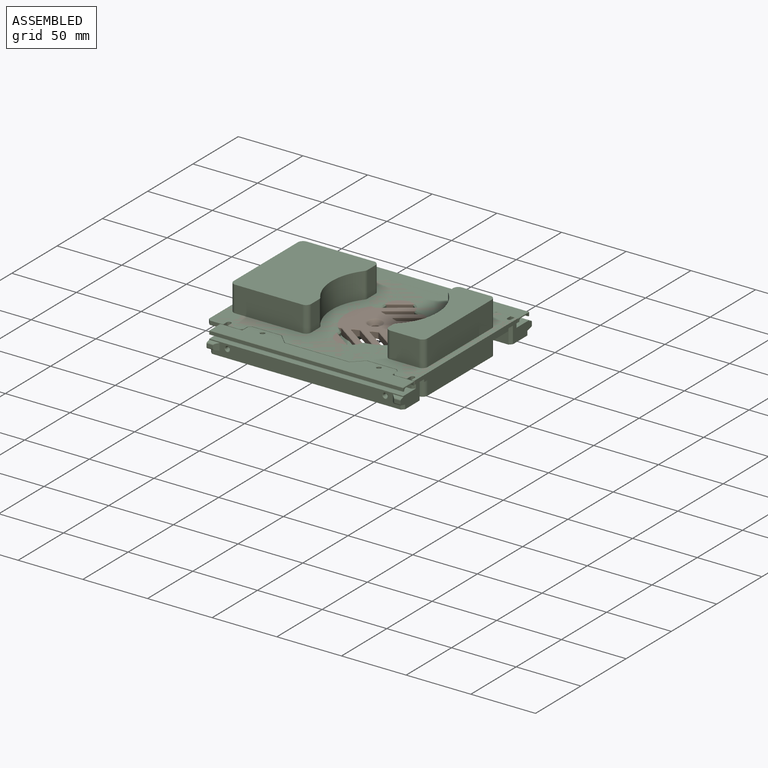
[diagram: assembled view]
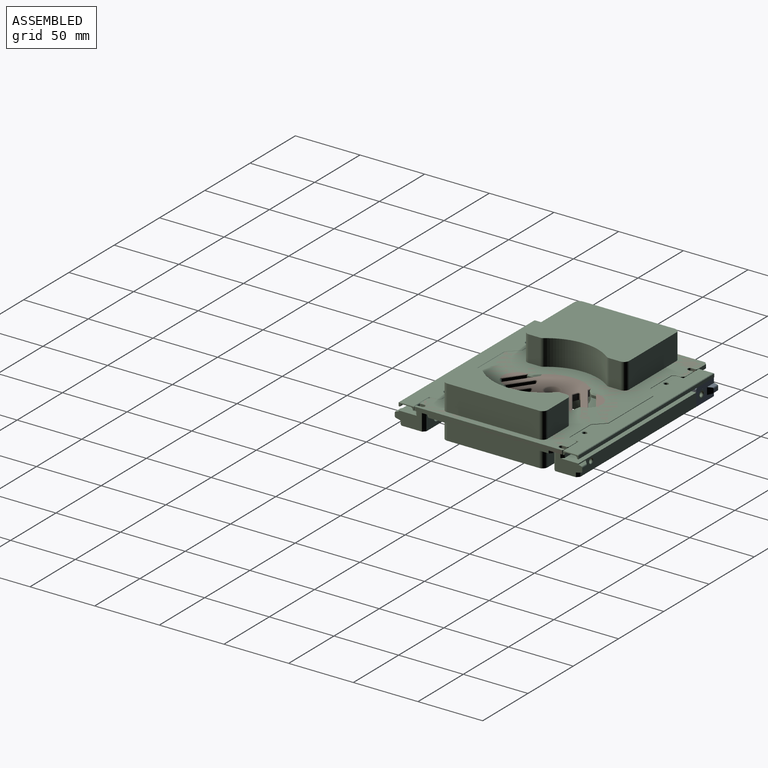
[diagram: assembled view, second angle]
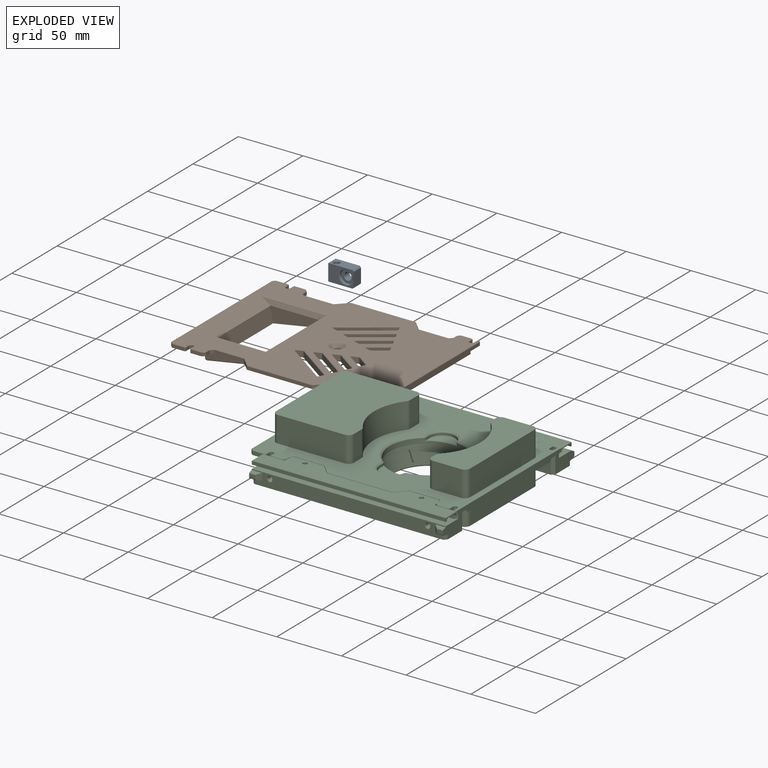
[diagram: exploded view]
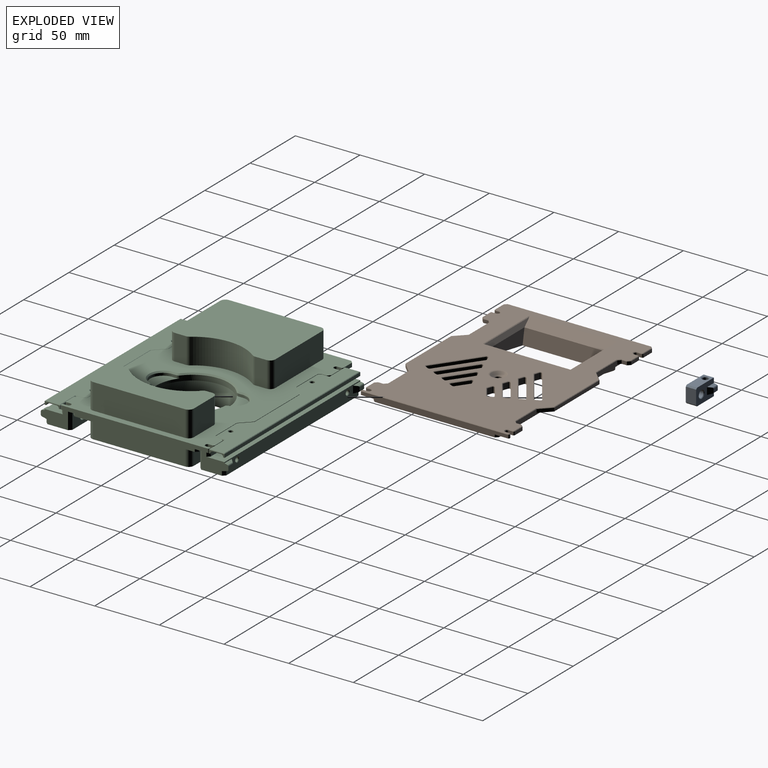
[diagram: exploded view, second angle]
FCSTD DOCUMENT  (FreeCAD 1.2R20260204 (Git shallow))
Label: clip-panneau
License: All rights reserved
LicenseURL: https://en.wikipedia.org/wiki/All_rights_reserved
objects: Sketcher::SketchObject×27, PartDesign::Chamfer×25, PartDesign::Pocket×16, PartDesign::Pad×13, App::Point×9, PartDesign::Fillet×8, PartDesign::Body×7, PartDesign::ShapeBinder×4, PartDesign::Mirrored×3, Part::DatumPlane×3, PartDesign::Draft×2, App::Part×2, PartDesign::FeatureBase×2, App::Link×1
note: 267 computed .brp shape members not serialized (recipe doc carries the construction recipe); baked Part::Feature solids carry a one-line shape summary decoded from their .brp

FEATURE [App::Point] Origin003  label="Origine003"
  Role = Origin
FEATURE [Sketcher::SketchObject] Sketch005
  ArcFitTolerance = 1e-06
  AttachmentSupport = -> [Origin002]
  ExternalTypes = [0]
  FullyConstrained = true
  MakeInternals = false
  MapMode = 5
  Placement = pos=(0,0,0) rot=(1,0,0;1.5708rad)
  sketch-geometry (6):
    g0: LineSegment StartX=0 StartY=-3.5 StartZ=0 EndX=-20 EndY=-3.5 EndZ=0
    g1: LineSegment StartX=-20 StartY=-3.5 StartZ=0 EndX=-20 EndY=-16.5 EndZ=0
    g2: LineSegment StartX=-20 StartY=-16.5 StartZ=0 EndX=0 EndY=-16.5 EndZ=0
    g3: LineSegment StartX=0 StartY=-16.5 StartZ=0 EndX=0 EndY=-3.5 EndZ=0
    g4: Circle CenterX=-6 CenterY=-10 CenterZ=0 NormalX=0 NormalY=0 NormalZ=1 AngleXU=0 Radius=1.7
    g5: Circle [constr] CenterX=-6 CenterY=-10 CenterZ=0 NormalX=0 NormalY=0 NormalZ=1 AngleXU=0 Radius=5
  constraints (17):
    c: Coincident(g0,g1)
    c: Coincident(g1,g2)
    c: Coincident(g2,g3)
    c: Coincident(g3,g0)
    c: Horizontal(g0)
    c: Horizontal(g2)
    c: Vertical(g1)
    c: Vertical(g3)
    c: PointOnObject(g0,g-2)
    c: Distance(g2,g-1) = 16.5
    c: Distance(g0,g-1) = 3.5
    c: Diameter(g4) = 3.4
    c: DistanceY(g4,g-1) = 10
    c: DistanceX(g4,g-1) = 6
    c: Coincident(g5,g4)
    c: Diameter(g5) = 10
    c: DistanceX(g0,g0) = 20
FEATURE [PartDesign::Pad] Pad002
  Direction = (0,-1,2e-16)
  Length = 20
  Length2 = 10
  Profile = -> Sketch005
  ReferenceAxis = -> Sketch005 [N_Axis]
  Refine = true
  SideType = 0
  Suppressed = false
  Type = 0
  Type2 = 0
FEATURE [Sketcher::SketchObject] Sketch006
  ArcFitTolerance = 1e-06
  AttachmentSupport = -> [Pad002]
  ExternalGeometry = -> [Pad002]
  ExternalTypes = [0]
  FullyConstrained = true
  MakeInternals = false
  MapMode = 5
  Placement = pos=(0,-20,0) rot=(1,0,0;1.5708rad)
  sketch-geometry (1):
    g0: Circle CenterX=-6 CenterY=-10 CenterZ=0 NormalX=0 NormalY=0 NormalZ=1 AngleXU=0 Radius=3.5
  constraints (2):
    c: Coincident(g0,g-3)
    c: Diameter(g0) = 7
FEATURE [PartDesign::Pocket] Pocket003
  BaseFeature = -> Pad002
  Direction = (0,1,-2e-16)
  Length = 2
  Length2 = 5
  Profile = -> Sketch006
  ReferenceAxis = -> Sketch006 [N_Axis]
  Refine = true
  SideType = 0
  Suppressed = false
  Type = 0
  Type2 = 0
FEATURE [Sketcher::SketchObject] Sketch007
  ArcFitTolerance = 1e-06
  AttachmentSupport = -> [Pocket003]
  ExternalGeometry = -> [Pocket003]
  ExternalTypes = [0,0]
  FullyConstrained = true
  MakeInternals = false
  MapMode = 5
  Placement = pos=(0,-8e-16,-3.5) rot=(0,0,1;0rad)
  sketch-geometry (2):
    g0: Circle CenterX=-16 CenterY=-16 CenterZ=0 NormalX=0 NormalY=0 NormalZ=1 AngleXU=0 Radius=2.25
    g1: LineSegment [constr] StartX=-20 StartY=-16 StartZ=0 EndX=-16 EndY=-16 EndZ=0
  constraints (6):
    c: Diameter(g0) = 4.5
    c: Coincident(g1,g0)
    c: Horizontal(g1)
    c: DistanceX(g1,g1) = 4
    c: DistanceY(g-4,g1) = 4
    c: PointOnObject(g1,g-3)
FEATURE [PartDesign::Pocket] Pocket004
  BaseFeature = -> Pocket003
  Direction = (0,0,-1)
  Length = 14
  Length2 = 5
  Profile = -> Sketch007
  ReferenceAxis = -> Sketch007 [N_Axis]
  Refine = true
  SideType = 0
  Suppressed = false
  Type = 0
  Type2 = 0
FEATURE [Sketcher::SketchObject] Sketch008
  ArcFitTolerance = 1e-06
  AttachmentSupport = -> [Pocket004]
  ExternalGeometry = -> [Pocket004]
  ExternalTypes = [0]
  FullyConstrained = true
  MakeInternals = false
  MapMode = 5
  Placement = pos=(-20,0,0) rot=(0.57735,-0.57735,-0.57735;2.0944rad)
  sketch-geometry (5):
    g0: LineSegment StartX=2.8e-15 StartY=-12.75 StartZ=0 EndX=-3 EndY=-12 EndZ=0
    g1: LineSegment StartX=-3 StartY=-12 StartZ=0 EndX=-3 EndY=-8 EndZ=0
    g2: LineSegment StartX=-3 StartY=-8 StartZ=0 EndX=1.8e-15 EndY=-7.25 EndZ=0
    g3: LineSegment StartX=1.8e-15 StartY=-7.25 StartZ=0 EndX=2.8e-15 EndY=-12.75 EndZ=0
    g4: LineSegment [constr] StartX=-3 StartY=-10 StartZ=0 EndX=2.2e-15 EndY=-10 EndZ=0
  constraints (14):
    c: Coincident(g0,g1)
    c: Vertical(g1)
    c: Coincident(g1,g2)
    c: PointOnObject(g2,g-3)
    c: Coincident(g2,g3)
    c: Coincident(g3,g0)
    c: PointOnObject(g0,g-3)
    c: Equal(g0,g2)
    c: Symmetric(g1,g1,g4)
    c: Symmetric(g3,g3,g4)
    c: Distance(g-1,g4) = 10
    c: DistanceY(g3,g3) = 5.5
    c: DistanceY(g1,g1) = 4
    c: DistanceX(g4,g4) = 3
FEATURE [PartDesign::Pad] Pad003
  BaseFeature = -> Pocket004
  Direction = (-1,0,0)
  Length = 5
  Length2 = 10
  Profile = -> Sketch008
  ReferenceAxis = -> Sketch008 [N_Axis]
  Refine = true
  Reversed = true
  SideType = 0
  Suppressed = false
  Type = 0
  Type2 = 0
FEATURE [PartDesign::Draft] Draft001
  Angle = -45
  Base = -> Pad003 [Face8]
  BaseFeature = -> Pad003
  NeutralPlane = -> Pad003 [Face12]
  Refine = true
  SupportTransform = false
  Suppressed = false
FEATURE [PartDesign::Fillet] Fillet001
  Base = -> Draft001 [Edge27,Edge22]
  BaseFeature = -> Draft001
  Radius = 1
  Refine = true
  SupportTransform = false
  Suppressed = false
  UseAllEdges = false
FEATURE [PartDesign::Chamfer] Chamfer005
  Angle = 45
  Base = -> Fillet001 [Edge28,Edge34]
  BaseFeature = -> Fillet001
  ChamferType = 0
  FlipDirection = false
  Refine = true
  Size = 0.6
  Size2 = 1
  SupportTransform = false
  Suppressed = false
  UseAllEdges = false
FEATURE [PartDesign::Chamfer] Chamfer006
  Angle = 45
  Base = -> Chamfer005 [Edge38,Edge17,Edge20]
  BaseFeature = -> Chamfer005
  ChamferType = 0
  FlipDirection = false
  Refine = true
  Size = 0.4
  Size2 = 1
  SupportTransform = false
  Suppressed = false
  UseAllEdges = false
FEATURE [PartDesign::Pad] Pad004
  BaseFeature = -> Chamfer006
  Direction = (1,0,0)
  Length = 55
  Length2 = 10
  Profile = -> Chamfer006 [Face9]
  Refine = true
  SideType = 0
  Suppressed = false
  Type = 0
  Type2 = 0
FEATURE [PartDesign::Mirrored] Mirrored
  BaseFeature = -> Pad004
  MirrorPlane = -> Pad004 [Face1]
  Refine = true
  Suppressed = false
  TransformMode = 1
FEATURE [Sketcher::SketchObject] Sketch009
  ArcFitTolerance = 1e-06
  AttachmentSupport = -> [Mirrored]
  ExternalGeometry = -> [Mirrored]
  ExternalTypes = [0]
  FullyConstrained = true
  MakeInternals = false
  MapMode = 5
  Placement = pos=(-20,0,0) rot=(0.57735,-0.57735,-0.57735;2.0944rad)
  sketch-geometry (4):
    g0: LineSegment StartX=0 StartY=-3.5 StartZ=0 EndX=0 EndY=-6.5 EndZ=0
    g1: LineSegment StartX=0 StartY=-6.5 StartZ=0 EndX=12 EndY=-6.5 EndZ=0
    g2: LineSegment StartX=12 StartY=-6.5 StartZ=0 EndX=12 EndY=-3.5 EndZ=0
    g3: LineSegment StartX=12 StartY=-3.5 StartZ=0 EndX=0 EndY=-3.5 EndZ=0
  constraints (11):
    c: Coincident(g0,g1)
    c: Coincident(g1,g2)
    c: Coincident(g2,g3)
    c: Coincident(g3,g0)
    c: Vertical(g0)
    c: Vertical(g2)
    c: Horizontal(g1)
    c: Horizontal(g3)
    c: Coincident(g0,g-3)
    c: Distance(g0,g0) = 3
    c: DistanceX(g3,g3) = 12
FEATURE [PartDesign::Pocket] Pocket005
  BaseFeature = -> Mirrored
  Direction = (1,0,0)
  Length = 5
  Length2 = 5
  Profile = -> Sketch009
  ReferenceAxis = -> Sketch009 [N_Axis]
  Refine = true
  SideType = 0
  Suppressed = false
  Type = 1
  Type2 = 0
FEATURE [PartDesign::Chamfer] Chamfer007
  Angle = 45
  Base = -> Pocket005 [Edge35,Edge6,Edge21,Edge8,Edge29,Edge4]
  BaseFeature = -> Pocket005
  ChamferType = 0
  FlipDirection = false
  Refine = true
  Size = 2
  Size2 = 1
  SupportTransform = false
  Suppressed = false
  UseAllEdges = false
FEATURE [Sketcher::SketchObject] Sketch010
  ArcFitTolerance = 1e-06
  AttachmentSupport = -> [Chamfer007]
  ExternalGeometry = -> [Chamfer007]
  ExternalTypes = [0,0,0]
  FullyConstrained = true
  MakeInternals = false
  MapMode = 5
  Placement = pos=(0,-8e-16,-3.5) rot=(0,0,1;0rad)
  sketch-geometry (4):
    g0: LineSegment [constr] StartX=-16 StartY=-16 StartZ=0 EndX=126 EndY=-16 EndZ=0
    g1: Circle CenterX=10 CenterY=-16 CenterZ=0 NormalX=0 NormalY=0 NormalZ=1 AngleXU=0 Radius=2.25
    g2: Circle CenterX=100 CenterY=-16 CenterZ=0 NormalX=0 NormalY=0 NormalZ=1 AngleXU=0 Radius=2.25
    g3: GeomPoint X=55 Y=-16 Z=0
  constraints (8):
    c: Coincident(g0,g-3)
    c: Coincident(g0,g-4)
    c: PointOnObject(g1,g0)
    c: Symmetric(g0,g0,g3)
    c: Symmetric(g1,g2,g3)
    c: Equal(g1,g2)
    c: Equal(g-5,g1)
    c: DistanceX(g1,g2) = 90
FEATURE [PartDesign::Pocket] Pocket006
  BaseFeature = -> Chamfer007
  Direction = (0,0,-1)
  Length = 5
  Length2 = 5
  Profile = -> Sketch010
  ReferenceAxis = -> Sketch010 [N_Axis]
  Refine = true
  SideType = 0
  Suppressed = false
  Type = 1
  Type2 = 0
FEATURE [PartDesign::Chamfer] Chamfer008
  Angle = 45
  Base = -> Pocket006 [Edge24,Edge23,Edge43,Edge42]
  BaseFeature = -> Pocket006
  ChamferType = 0
  FlipDirection = false
  Refine = true
  Size = 0.6
  Size2 = 1
  SupportTransform = false
  Suppressed = false
  UseAllEdges = false
FEATURE [PartDesign::Body] Body001  label="clip-panneau-led"
  AllowCompound = true
  Group = -> [Sketch005,Pad002,Sketch006,Pocket003,Sketch007,Pocket004,Sketch008,Pad003,Draft001,Fillet001,Chamfer005,Chamfer006,Pad004,Mirrored,Sketch009,Pocket005,Chamfer007,Sketch010,Pocket006,Chamfer008]
  Origin = -> Origin002
  Tip = -> Chamfer008
FEATURE [App::Point] Origin005  label="Origine004"
  Role = Origin
FEATURE [PartDesign::ShapeBinder] CopyChamfer008
  TraceSupport = false
FEATURE [Sketcher::SketchObject] Sketch011
  ArcFitTolerance = 1e-06
  AttachmentSupport = -> [CopyChamfer008]
  ExternalGeometry = -> [CopyChamfer008]
  ExternalTypes = [0,0,0,0,0,0,0]
  FullyConstrained = true
  MakeInternals = false
  MapMode = 5
  Placement = pos=(0,-8e-16,-3.5) rot=(0,0,1;0rad)
  sketch-geometry (17):
    g0: LineSegment [constr] StartX=-20 StartY=0 StartZ=0 EndX=-20 EndY=-20 EndZ=0
    g1: LineSegment [constr] StartX=-20 StartY=-20 StartZ=0 EndX=130 EndY=-20 EndZ=0
    g2: LineSegment [constr] StartX=130 StartY=-20 StartZ=0 EndX=130 EndY=0 EndZ=0
    g3: LineSegment StartX=130 StartY=0 StartZ=0 EndX=-20 EndY=0 EndZ=0
    g4: Circle CenterX=10 CenterY=-16 CenterZ=0 NormalX=0 NormalY=0 NormalZ=1 AngleXU=0 Radius=1.65
    g5: Circle CenterX=100 CenterY=-16 CenterZ=0 NormalX=0 NormalY=0 NormalZ=1 AngleXU=0 Radius=1.65
    g6: LineSegment StartX=-20 StartY=0 StartZ=0 EndX=-20 EndY=-12 EndZ=0
    g7: LineSegment StartX=-20 StartY=-12 StartZ=0 EndX=-3 EndY=-12 EndZ=0
    g8: LineSegment StartX=-3 StartY=-12 StartZ=0 EndX=-3 EndY=-20 EndZ=0
    g9: LineSegment StartX=113 StartY=-20 StartZ=0 EndX=113 EndY=-12 EndZ=0
    g10: LineSegment StartX=113 StartY=-12 StartZ=0 EndX=130 EndY=-12 EndZ=0
    g11: LineSegment StartX=130 StartY=-12 StartZ=0 EndX=130 EndY=0 EndZ=0
    g12: LineSegment StartX=-3 StartY=-20 StartZ=0 EndX=22 EndY=-20 EndZ=0
    g13: LineSegment StartX=22 StartY=-20 StartZ=0 EndX=30 EndY=-12 EndZ=0
    g14: LineSegment StartX=30 StartY=-12 StartZ=0 EndX=80 EndY=-12 EndZ=0
    g15: LineSegment StartX=80 StartY=-12 StartZ=0 EndX=88 EndY=-20 EndZ=0
    g16: LineSegment StartX=88 StartY=-20 StartZ=0 EndX=113 EndY=-20 EndZ=0
  constraints (47):
    c: Coincident(g0,g1)
    c: Coincident(g1,g2)
    c: Coincident(g2,g3)
    c: Coincident(g3,g0)
    c: Vertical(g0)
    c: Vertical(g2)
    c: Horizontal(g1)
    c: Horizontal(g3)
    c: PointOnObject(g0,g-1)
    c: PointOnObject(g-6,g2)
    c: PointOnObject(g-7,g0)
    c: PointOnObject(g-4,g1)
    c: Coincident(g4,g-3)
    c: Coincident(g5,g-5)
    c: Equal(g5,g4)
    c: Diameter(g4) = 3.3
    c: Coincident(g6,g0)
    c: PointOnObject(g6,g0)
    c: Coincident(g7,g6)
    c: Horizontal(g7)
    c: Coincident(g8,g7)
    c: PointOnObject(g8,g1)
    c: PointOnObject(g9,g1)
    c: Vertical(g9)
    c: Coincident(g10,g9)
    c: PointOnObject(g10,g2)
    c: Horizontal(g10)
    c: Coincident(g11,g10)
    c: Coincident(g11,g2)
    c: Equal(g11,g6)
    c: Equal(g10,g7)
    c: PointOnObject(g9,g-8)
    c: Symmetric(g-9,g4,g8)
    c: Coincident(g12,g8)
    c: PointOnObject(g12,g1)
    c: Coincident(g13,g12)
    c: PointOnObject(g13,g-8)
    c: Coincident(g14,g13)
    c: PointOnObject(g14,g-8)
    c: Coincident(g15,g14)
    c: PointOnObject(g15,g1)
    c: Coincident(g16,g15)
    c: Coincident(g16,g9)
    c: Equal(g16,g12)
    c: Equal(g13,g15)
    c: Angle(g15,g14) = 0.785398
    c: DistanceX(g14,g14) = 50
FEATURE [PartDesign::Pad] Pad005
  Direction = (0,0,1)
  Length = 3
  Length2 = 10
  Profile = -> Sketch011
  ReferenceAxis = -> Sketch011 [N_Axis]
  Refine = true
  SideType = 0
  Suppressed = false
  Type = 0
  Type2 = 0
FEATURE [Sketcher::SketchObject] Sketch012
  ArcFitTolerance = 1e-06
  AttachmentSupport = -> [Pad005]
  ExternalGeometry = -> [Pad005]
  ExternalTypes = [0]
  FullyConstrained = true
  MakeInternals = false
  MapMode = 5
  Placement = pos=(-20,0,0) rot=(0.57735,-0.57735,-0.57735;2.0944rad)
  sketch-geometry (5):
    g0: LineSegment StartX=1 StartY=-3.5 StartZ=0 EndX=11 EndY=-3.5 EndZ=0
    g1: LineSegment StartX=11 StartY=-3.5 StartZ=0 EndX=11 EndY=-1.5 EndZ=0
    g2: LineSegment StartX=11 StartY=-1.5 StartZ=0 EndX=1 EndY=-1.5 EndZ=0
    g3: LineSegment StartX=1 StartY=-1.5 StartZ=0 EndX=1 EndY=-3.5 EndZ=0
    g4: GeomPoint X=6 Y=-3.5 Z=0
  constraints (12):
    c: Coincident(g0,g1)
    c: Coincident(g1,g2)
    c: Coincident(g2,g3)
    c: Coincident(g3,g0)
    c: Horizontal(g0)
    c: Horizontal(g2)
    c: Vertical(g1)
    c: Vertical(g3)
    c: DistanceX(g0,g0) = 10
    c: Symmetric(g0,g0,g4)
    c: Symmetric(g-3,g-3,g4)
    c: Distance(g1,g1) = 2
FEATURE [PartDesign::Pocket] Pocket007
  BaseFeature = -> Pad005
  Direction = (1,0,0)
  Length = 5
  Length2 = 5
  Profile = -> Sketch012
  ReferenceAxis = -> Sketch012 [N_Axis]
  Refine = true
  SideType = 0
  Suppressed = false
  Type = 1
  Type2 = 0
FEATURE [PartDesign::Fillet] Fillet002
  Base = -> Pocket007 [Edge44,Edge43]
  BaseFeature = -> Pocket007
  Radius = 1.9
  Refine = true
  SupportTransform = false
  Suppressed = false
  UseAllEdges = false
FEATURE [PartDesign::Chamfer] Chamfer009
  Angle = 45
  Base = -> Fillet002 [Edge57,Edge52]
  BaseFeature = -> Fillet002
  ChamferType = 0
  FlipDirection = false
  Refine = true
  Size = 2
  Size2 = 1
  SupportTransform = false
  Suppressed = false
  UseAllEdges = false
FEATURE [PartDesign::Chamfer] Chamfer010
  Angle = 45
  Base = -> Chamfer009 [Face18,Edge15,Edge16]
  BaseFeature = -> Chamfer009
  ChamferType = 0
  FlipDirection = false
  Refine = true
  Size = 0.4
  Size2 = 1
  SupportTransform = false
  Suppressed = false
  UseAllEdges = false
FEATURE [PartDesign::Body] Body002  label="diffuser"
  AllowCompound = true
  Group = -> [CopyChamfer008,Sketch011,Pad005,Sketch012,Pocket007,Fillet002,Chamfer009,Chamfer010]
  Origin = -> Origin004
  Tip = -> Chamfer010
FEATURE [App::Point] Origin007  label="Origine006"
  Role = Origin
FEATURE [PartDesign::ShapeBinder] CopyChamfer009
  TraceSupport = false
FEATURE [App::Point] Origin009  label="Origine008"
  Role = Origin
FEATURE [App::Part] Part001  label="clip-top-carter-asm"
  Group = -> [Body001,Body002]
  Origin = -> Origin010
FEATURE [App::Point] Origin011  label="Origine010"
  Role = Origin
FEATURE [App::Link] Link  label="clip-top-carter-asm001"
  LinkPlacement = pos=(110,-139,3.038e-13) rot=(0,0,-1;3.14159rad)
  LinkedObject = -> Part001
  Placement = pos=(110,-139,3.038e-13) rot=(0,0,-1;3.14159rad)
FEATURE [App::Point] Origin013  label="Origine012"
  Role = Origin
FEATURE [App::Point] Origin001  label="Origine"
  Role = Origin
FEATURE [Sketcher::SketchObject] Sketch
  ArcFitTolerance = 1e-06
  AttachmentSupport = -> [Origin]
  ExternalTypes = [0]
  FullyConstrained = true
  MakeInternals = false
  MapMode = 5
  Placement = pos=(0,0,0) rot=(1,0,0;1.5708rad)
  sketch-geometry (6):
    g0: LineSegment StartX=0 StartY=-3.5 StartZ=0 EndX=-20 EndY=-3.5 EndZ=0
    g1: LineSegment StartX=-20 StartY=-3.5 StartZ=0 EndX=-20 EndY=-16.5 EndZ=0
    g2: LineSegment StartX=-20 StartY=-16.5 StartZ=0 EndX=0 EndY=-16.5 EndZ=0
    g3: LineSegment StartX=0 StartY=-16.5 StartZ=0 EndX=0 EndY=-3.5 EndZ=0
    g4: Circle CenterX=-6 CenterY=-10 CenterZ=0 NormalX=0 NormalY=0 NormalZ=1 AngleXU=0 Radius=2.7
    g5: Circle [constr] CenterX=-6 CenterY=-10 CenterZ=0 NormalX=0 NormalY=0 NormalZ=1 AngleXU=0 Radius=5
  constraints (17):
    c: Coincident(g0,g1)
    c: Coincident(g1,g2)
    c: Coincident(g2,g3)
    c: Coincident(g3,g0)
    c: Horizontal(g0)
    c: Horizontal(g2)
    c: Vertical(g1)
    c: Vertical(g3)
    c: PointOnObject(g0,g-2)
    c: Distance(g2,g-1) = 16.5
    c: Distance(g0,g-1) = 3.5
    c: Diameter(g4) = 5.4
    c: DistanceY(g4,g-1) = 10
    c: DistanceX(g4,g-1) = 6
    c: Coincident(g5,g4)
    c: Diameter(g5) = 10
    c: DistanceX(g0,g0) = 20
FEATURE [PartDesign::Pad] Pad
  Direction = (0,-1,2e-16)
  Length = 8
  Length2 = 10
  Profile = -> Sketch
  ReferenceAxis = -> Sketch [N_Axis]
  Refine = true
  SideType = 0
  Suppressed = false
  Type = 0
  Type2 = 0
FEATURE [Sketcher::SketchObject] Sketch001
  ArcFitTolerance = 1e-06
  AttachmentSupport = -> [Pad]
  ExternalTypes = [0]
  FullyConstrained = true
  MakeInternals = false
  MapMode = 5
  Placement = pos=(0,-8,0) rot=(1,0,0;1.5708rad)
  sketch-geometry (1):
    g0: Circle CenterX=-6 CenterY=-10 CenterZ=0 NormalX=0 NormalY=0 NormalZ=1 AngleXU=0 Radius=5
  constraints (2):
    c: Coincident(g0,g-3)
    c: Diameter(g0) = 10
FEATURE [PartDesign::Pocket] Pocket
  BaseFeature = -> Pad
  Direction = (0,1,-2e-16)
  Length = 2
  Length2 = 5
  Profile = -> Sketch001
  ReferenceAxis = -> Sketch001 [N_Axis]
  Refine = true
  SideType = 0
  Suppressed = false
  Type = 0
  Type2 = 0
FEATURE [Sketcher::SketchObject] Sketch002
  ArcFitTolerance = 1e-06
  AttachmentSupport = -> [Pocket]
  ExternalGeometry = -> [Pocket]
  ExternalTypes = [0,0]
  FullyConstrained = true
  MakeInternals = false
  MapMode = 5
  Placement = pos=(0,-8e-16,-3.5) rot=(0,0,1;0rad)
  sketch-geometry (2):
    g0: Circle CenterX=-16 CenterY=-4 CenterZ=0 NormalX=0 NormalY=0 NormalZ=1 AngleXU=0 Radius=2.3
    g1: LineSegment [constr] StartX=-20 StartY=-4 StartZ=0 EndX=-16 EndY=-4 EndZ=0
  constraints (5):
    c: Diameter(g0) = 4.6
    c: Symmetric(g-3,g-3,g1)
    c: Coincident(g1,g0)
    c: Horizontal(g1)
    c: DistanceX(g1,g1) = 4
FEATURE [PartDesign::Pocket] Pocket001
  BaseFeature = -> Pocket
  Direction = (0,0,-1)
  Length = 14
  Length2 = 5
  Profile = -> Sketch002
  ReferenceAxis = -> Sketch002 [N_Axis]
  Refine = true
  SideType = 0
  Suppressed = false
  Type = 0
  Type2 = 0
FEATURE [Sketcher::SketchObject] Sketch003
  ArcFitTolerance = 1e-06
  AttachmentSupport = -> [Pocket001]
  ExternalGeometry = -> [Pocket001]
  ExternalTypes = [0]
  FullyConstrained = true
  MakeInternals = false
  MapMode = 5
  Placement = pos=(-20,0,0) rot=(0.57735,-0.57735,-0.57735;2.0944rad)
  sketch-geometry (5):
    g0: LineSegment StartX=2.8e-15 StartY=-12.75 StartZ=0 EndX=-3 EndY=-12 EndZ=0
    g1: LineSegment StartX=-3 StartY=-12 StartZ=0 EndX=-3 EndY=-8 EndZ=0
    g2: LineSegment StartX=-3 StartY=-8 StartZ=0 EndX=1.8e-15 EndY=-7.25 EndZ=0
    g3: LineSegment StartX=1.8e-15 StartY=-7.25 StartZ=0 EndX=2.8e-15 EndY=-12.75 EndZ=0
    g4: LineSegment [constr] StartX=-3 StartY=-10 StartZ=0 EndX=2.2e-15 EndY=-10 EndZ=0
  constraints (14):
    c: Coincident(g0,g1)
    c: Vertical(g1)
    c: Coincident(g1,g2)
    c: PointOnObject(g2,g-3)
    c: Coincident(g2,g3)
    c: Coincident(g3,g0)
    c: PointOnObject(g0,g-3)
    c: Equal(g0,g2)
    c: Symmetric(g1,g1,g4)
    c: Symmetric(g3,g3,g4)
    c: Distance(g-1,g4) = 10
    c: DistanceY(g3,g3) = 5.5
    c: DistanceY(g1,g1) = 4
    c: DistanceX(g4,g4) = 3
FEATURE [PartDesign::Pad] Pad001
  BaseFeature = -> Pocket001
  Direction = (-1,0,0)
  Length = 5
  Length2 = 10
  Profile = -> Sketch003
  ReferenceAxis = -> Sketch003 [N_Axis]
  Refine = true
  Reversed = true
  SideType = 0
  Suppressed = false
  Type = 0
  Type2 = 0
FEATURE [PartDesign::Draft] Draft
  Angle = -45
  Base = -> Pad001 [Face8]
  BaseFeature = -> Pad001
  NeutralPlane = -> Pad001 [Face12]
  Refine = true
  SupportTransform = false
  Suppressed = false
FEATURE [PartDesign::Fillet] Fillet
  Base = -> Draft [Edge27,Edge22]
  BaseFeature = -> Draft
  Radius = 1
  Refine = true
  SupportTransform = false
  Suppressed = false
  UseAllEdges = false
FEATURE [PartDesign::Chamfer] Chamfer
  Angle = 45
  Base = -> Fillet [Edge28,Edge34]
  BaseFeature = -> Fillet
  ChamferType = 0
  FlipDirection = false
  Refine = true
  Size = 0.6
  Size2 = 1
  SupportTransform = false
  Suppressed = false
  UseAllEdges = false
FEATURE [PartDesign::Chamfer] Chamfer001
  Angle = 45
  Base = -> Chamfer [Edge38,Edge17,Edge20]
  BaseFeature = -> Chamfer
  ChamferType = 0
  FlipDirection = false
  Refine = true
  Size = 0.4
  Size2 = 1
  SupportTransform = false
  Suppressed = false
  UseAllEdges = false
FEATURE [PartDesign::Chamfer] Chamfer002
  Angle = 45
  Base = -> Chamfer001 [Edge13,Edge32]
  BaseFeature = -> Chamfer001
  ChamferType = 0
  FlipDirection = false
  Refine = true
  Size = 1
  Size2 = 1
  SupportTransform = false
  Suppressed = false
  UseAllEdges = false
FEATURE [PartDesign::Chamfer] Chamfer003
  Angle = 45
  Base = -> Chamfer002 [Face4]
  BaseFeature = -> Chamfer002
  ChamferType = 0
  FlipDirection = false
  Refine = true
  Size = 0.4
  Size2 = 1
  SupportTransform = false
  Suppressed = false
  UseAllEdges = false
FEATURE [Part::DatumPlane] DatumPlane
  AttachmentOffset = pos=(0,0,0) rot=(1,0,0;1.5708rad)
  AttachmentSupport = -> [Chamfer003]
  MapMode = 45
  Placement = pos=(-9.06941,-4,-10) rot=(0,0,1;0rad)
FEATURE [Sketcher::SketchObject] Sketch004
  ArcFitTolerance = 1e-06
  AttachmentSupport = -> [DatumPlane]
  ExternalGeometry = -> [Chamfer003]
  ExternalTypes = [0]
  FullyConstrained = true
  MakeInternals = false
  MapMode = 5
  Placement = pos=(-9.06941,-4,-10) rot=(0,0,1;0rad)
  sketch-geometry (1):
    g0: Circle CenterX=-6.93059 CenterY=0 CenterZ=0 NormalX=0 NormalY=0 NormalZ=1 AngleXU=0 Radius=2.75
  constraints (2):
    c: Coincident(g0,g-3)
    c: Diameter(g0) = 5.5
FEATURE [PartDesign::Pocket] Pocket002
  BaseFeature = -> Chamfer003
  Direction = (0,0,-1)
  Length = 3
  Length2 = 5
  Profile = -> Sketch004
  ReferenceAxis = -> Sketch004 [N_Axis]
  Refine = true
  SideType = 2
  Suppressed = false
  Type = 0
  Type2 = 0
FEATURE [PartDesign::Chamfer] Chamfer004
  Angle = 45
  Base = -> Pocket002 [Edge70,Edge73]
  BaseFeature = -> Pocket002
  ChamferType = 0
  FlipDirection = false
  Refine = true
  Size = 0.4
  Size2 = 1
  SupportTransform = false
  Suppressed = false
  UseAllEdges = false
FEATURE [PartDesign::Body] Body  label="clip-panneau-3mm"
  AllowCompound = true
  Group = -> [Sketch,Pad,Sketch001,Pocket,Sketch002,Pocket001,Sketch003,Pad001,Draft,Fillet,Chamfer,Chamfer001,Chamfer002,Chamfer003,DatumPlane,Sketch004,Pocket002,Chamfer004]
  Origin = -> Origin
  Tip = -> Chamfer004
FEATURE [PartDesign::ShapeBinder] ShapeBinder
  Support = -> [Body002]
  TraceSupport = false
FEATURE [Sketcher::SketchObject] Sketch013
  ArcFitTolerance = 1e-06
  AttachmentSupport = -> [CopyChamfer009]
  ExternalGeometry = -> [CopyChamfer009,ShapeBinder]
  ExternalTypes = [0,0,0,0,0,0,0,0,0,0,0,0]
  FullyConstrained = true
  MakeInternals = false
  MapMode = 5
  Placement = pos=(0,-8e-16,-3.5) rot=(0,0,1;0rad)
  sketch-geometry (14):
    g0: Circle CenterX=-16 CenterY=-16 CenterZ=0 NormalX=0 NormalY=0 NormalZ=1 AngleXU=0 Radius=1.7
    g1: Circle CenterX=126 CenterY=-16 CenterZ=0 NormalX=0 NormalY=0 NormalZ=1 AngleXU=0 Radius=1.7
    g2: LineSegment StartX=130 StartY=-69.5 StartZ=0 EndX=130 EndY=-12 EndZ=0
    g3: LineSegment StartX=130 StartY=-12 StartZ=0 EndX=113 EndY=-12 EndZ=0
    g4: LineSegment StartX=113 StartY=-12 StartZ=0 EndX=113 EndY=-20 EndZ=0
    g5: LineSegment StartX=113 StartY=-20 StartZ=0 EndX=88 EndY=-20 EndZ=0
    g6: LineSegment StartX=88 StartY=-20 StartZ=0 EndX=80 EndY=-12 EndZ=0
    g7: LineSegment StartX=80 StartY=-12 StartZ=0 EndX=30 EndY=-12 EndZ=0
    g8: LineSegment StartX=30 StartY=-12 StartZ=0 EndX=22 EndY=-20 EndZ=0
    g9: LineSegment StartX=22 StartY=-20 StartZ=0 EndX=-3 EndY=-20 EndZ=0
    g10: LineSegment StartX=-3 StartY=-20 StartZ=0 EndX=-3 EndY=-12 EndZ=0
    g11: LineSegment StartX=-3 StartY=-12 StartZ=0 EndX=-20 EndY=-12 EndZ=0
    g12: LineSegment StartX=-20 StartY=-12 StartZ=0 EndX=-20 EndY=-69.5 EndZ=0
    g13: LineSegment StartX=-20 StartY=-69.5 StartZ=0 EndX=130 EndY=-69.5 EndZ=0
  constraints (33):
    c: Coincident(g0,g-3)
    c: Diameter(g0) = 3.4
    c: Coincident(g1,g-4)
    c: Equal(g1,g0)
    c: Vertical(g2)
    c: Coincident(g3,g2)
    c: Horizontal(g3)
    c: PointOnObject(g-5,g2)
    c: Coincident(g4,g3)
    c: Vertical(g4)
    c: Coincident(g5,g4)
    c: Horizontal(g5)
    c: Coincident(g6,g5)
    c: Coincident(g7,g6)
    c: Coincident(g7,g8)
    c: Coincident(g8,g9)
    c: Horizontal(g9)
    c: Coincident(g9,g10)
    c: Vertical(g10)
    c: Coincident(g10,g11)
    c: Coincident(g11,g12)
    c: Vertical(g12)
    c: Equal(g2,g12)
    c: Coincident(g13,g12)
    c: Coincident(g13,g2)
    c: Distance(g-6,g13) = 49.5
    c: Coincident(g11,g-14)
    c: Coincident(g-14,g10)
    c: Coincident(g7,g-12)
    c: Coincident(g8,g-12)
    c: Coincident(g6,g-11)
    c: Coincident(g5,g-10)
    c: Coincident(g3,g-9)
FEATURE [PartDesign::Pad] Pad006
  Direction = (0,0,1)
  Length = 3
  Length2 = 10
  Profile = -> Sketch013
  ReferenceAxis = -> Sketch013 [N_Axis]
  Refine = true
  SideType = 0
  Suppressed = false
  Type = 0
  Type2 = 0
FEATURE [Sketcher::SketchObject] Sketch014
  ArcFitTolerance = 1e-06
  AttachmentSupport = -> [Pad006]
  ExternalGeometry = -> [Pad006]
  ExternalTypes = [0,0]
  FullyConstrained = true
  MakeInternals = false
  MapMode = 5
  Placement = pos=(0,0,-3.5) rot=(1,0,0;3.14159rad)
  sketch-geometry (4):
    g0: LineSegment StartX=-20 StartY=69.5 StartZ=0 EndX=-20 EndY=21 EndZ=0
    g1: LineSegment StartX=-20 StartY=21 StartZ=0 EndX=130 EndY=21 EndZ=0
    g2: LineSegment StartX=130 StartY=21 StartZ=0 EndX=130 EndY=69.5 EndZ=0
    g3: LineSegment StartX=130 StartY=69.5 StartZ=0 EndX=-20 EndY=69.5 EndZ=0
  constraints (10):
    c: Coincident(g0,g1)
    c: Coincident(g1,g2)
    c: Coincident(g2,g3)
    c: Coincident(g3,g0)
    c: Vertical(g0)
    c: Vertical(g2)
    c: Horizontal(g1)
    c: Coincident(g0,g-3)
    c: Coincident(g2,g-3)
    c: Distance(g1,g-4) = 1
FEATURE [PartDesign::Pad] Pad007
  BaseFeature = -> Pad006
  Direction = (0,0,-1)
  Length = 2
  Length2 = 10
  Profile = -> Sketch014
  ReferenceAxis = -> Sketch014 [N_Axis]
  Refine = true
  SideType = 0
  Suppressed = false
  Type = 0
  Type2 = 0
FEATURE [PartDesign::Chamfer] Chamfer011
  Angle = 45
  Base = -> Pad007 [Edge38,Edge40,Edge31,Edge2,Edge33,Edge32]
  BaseFeature = -> Pad007
  ChamferType = 0
  FlipDirection = false
  Refine = true
  Size = 2
  Size2 = 1
  SupportTransform = false
  Suppressed = false
  UseAllEdges = false
FEATURE [Sketcher::SketchObject] Sketch019
  ArcFitTolerance = 1e-06
  AttachmentSupport = -> [Chamfer011]
  ExternalGeometry = -> [Chamfer011]
  ExternalTypes = [0,0,0,0]
  FullyConstrained = true
  MakeInternals = false
  MapMode = 5
  Placement = pos=(0,0,-0.5) rot=(0,0,1;0rad)
  sketch-geometry (8):
    g0: ArcOfCircle CenterX=126 CenterY=-16 CenterZ=0 NormalX=0 NormalY=0 NormalZ=1 AngleXU=0 Radius=1.7 StartAngle=3.14159 EndAngle=6.28319
    g1: ArcOfCircle CenterX=126 CenterY=-12 CenterZ=0 NormalX=0 NormalY=0 NormalZ=1 AngleXU=0 Radius=1.7 StartAngle=-9e-16 EndAngle=3.14159
    g2: LineSegment StartX=124.3 StartY=-16 StartZ=0 EndX=124.3 EndY=-12 EndZ=0
    g3: LineSegment StartX=127.7 StartY=-16 StartZ=0 EndX=127.7 EndY=-12 EndZ=0
    g4: ArcOfCircle CenterX=-16 CenterY=-16 CenterZ=0 NormalX=0 NormalY=0 NormalZ=1 AngleXU=0 Radius=1.7 StartAngle=3.14159 EndAngle=6.28319
    g5: ArcOfCircle CenterX=-16 CenterY=-12 CenterZ=0 NormalX=0 NormalY=0 NormalZ=1 AngleXU=0 Radius=1.7 StartAngle=0 EndAngle=3.14159
    g6: LineSegment StartX=-17.7 StartY=-16 StartZ=0 EndX=-17.7 EndY=-12 EndZ=0
    g7: LineSegment StartX=-14.3 StartY=-16 StartZ=0 EndX=-14.3 EndY=-12 EndZ=0
  constraints (18):
    c: Tangent(g0,g2) = 1.5708
    c: Tangent(g0,g3) = -1.5708
    c: Tangent(g1,g2) = 1.5708
    c: Tangent(g1,g3) = -1.5708
    c: Equal(g0,g1)
    c: Coincident(g0,g-4)
    c: PointOnObject(g1,g-5)
    c: Tangent(g4,g6) = 1.5708
    c: Tangent(g4,g7) = -1.5708
    c: Tangent(g5,g6) = 1.5708
    c: Tangent(g5,g7) = -1.5708
    c: Equal(g4,g5)
    c: Coincident(g4,g-3)
    c: PointOnObject(g5,g-6)
    c: Vertical(g6)
    c: Equal(g4,g-3)
    c: Vertical(g3)
    c: Equal(g0,g-4)
FEATURE [PartDesign::Pocket] Pocket010
  BaseFeature = -> Chamfer011
  Direction = (0,0,-1)
  Length = 5
  Length2 = 5
  Profile = -> Sketch019
  ReferenceAxis = -> Sketch019 [N_Axis]
  Refine = true
  SideType = 0
  Suppressed = false
  Type = 0
  Type2 = 0
FEATURE [PartDesign::Fillet] Fillet004
  Base = -> Pocket010 [Edge68,Edge65,Edge81,Edge2,Edge4]
  BaseFeature = -> Pocket010
  Radius = 1
  Refine = true
  SupportTransform = false
  Suppressed = false
  UseAllEdges = false
FEATURE [PartDesign::Pad] Pad009
  BaseFeature = -> Fillet004
  Direction = (-1,0,0)
  Length = 10
  Length2 = 10
  Profile = -> Fillet004 [Face8]
  Refine = true
  SideType = 0
  Suppressed = false
  Type = 0
  Type2 = 0
FEATURE [PartDesign::Chamfer] Chamfer015
  Angle = 45
  Base = -> Pad009 [Edge98,Edge93]
  BaseFeature = -> Pad009
  ChamferType = 0
  FlipDirection = false
  Refine = true
  Size = 2
  Size2 = 1
  SupportTransform = false
  Suppressed = false
  UseAllEdges = false
FEATURE [PartDesign::Mirrored] Mirrored001
  BaseFeature = -> Chamfer015
  MirrorPlane = -> Chamfer011 [Face24]
  Refine = true
  Suppressed = false
  TransformMode = 1
FEATURE [PartDesign::Body] Body003  label="carter-top-base"
  AllowCompound = true
  Group = -> [CopyChamfer009,Sketch013,Pad006,Sketch014,Pad007,Chamfer011,Sketch019,Pocket010,Fillet004,Pad009,Chamfer015,Mirrored001,ShapeBinder]
  Origin = -> Origin006
  Tip = -> Mirrored001
FEATURE [PartDesign::FeatureBase] Clone
  BaseFeature = -> Body003
  Suppressed = false
FEATURE [Sketcher::SketchObject] Sketch015
  ArcFitTolerance = 1e-06
  AttachmentSupport = -> [Clone]
  ExternalTypes = [0,0]
  FullyConstrained = true
  MakeInternals = false
  MapMode = 5
  Placement = pos=(0,0,-0.5) rot=(0,0,1;0rad)
  sketch-geometry (5):
    g0: LineSegment [constr] StartX=-20 StartY=-69.5 StartZ=0 EndX=130 EndY=-69.5 EndZ=0
    g1: ArcOfCircle CenterX=68 CenterY=-69.5 CenterZ=0 NormalX=0 NormalY=0 NormalZ=1 AngleXU=0 Radius=28 StartAngle=4.71239 EndAngle=7.85398
    g2: ArcOfCircle CenterX=66 CenterY=-69.5 CenterZ=0 NormalX=0 NormalY=0 NormalZ=1 AngleXU=0 Radius=28 StartAngle=1.5708 EndAngle=4.71239
    g3: LineSegment StartX=68 StartY=-97.5 StartZ=0 EndX=66 EndY=-97.5 EndZ=0
    g4: LineSegment StartX=68 StartY=-41.5 StartZ=0 EndX=66 EndY=-41.5 EndZ=0
  constraints (12):
    c: Symmetric(g-3,g-3,g0)
    c: Symmetric(g-4,g-4,g0)
    c: Tangent(g1,g3) = 1.5708
    c: Tangent(g1,g4) = -1.5708
    c: Tangent(g2,g3) = 1.5708
    c: Tangent(g2,g4) = -1.5708
    c: Equal(g1,g2)
    c: PointOnObject(g1,g0)
    c: Radius(g1) = 28
    c: Distance(g1,g-4) = 62
    c: Distance(g2,g1) = 2
    c: PointOnObject(g2,g0)
FEATURE [PartDesign::Pocket] Pocket008
  BaseFeature = -> Clone
  Direction = (0,0,-1)
  Length = 5
  Length2 = 5
  Profile = -> Sketch015
  ReferenceAxis = -> Sketch015 [N_Axis]
  Refine = true
  SideType = 0
  Suppressed = false
  Type = 0
  Type2 = 0
FEATURE [Sketcher::SketchObject] Sketch016
  ArcFitTolerance = 1e-06
  AttachmentSupport = -> [Pocket008]
  ExternalGeometry = -> [Pocket008]
  ExternalTypes = [0,0,0,0]
  FullyConstrained = true
  MakeInternals = false
  MapMode = 5
  Placement = pos=(0,0,-5.5) rot=(1,0,0;3.14159rad)
  sketch-geometry (4):
    g0: ArcOfCircle CenterX=66 CenterY=69.5 CenterZ=0 NormalX=0 NormalY=0 NormalZ=1 AngleXU=0 Radius=32 StartAngle=1.5708 EndAngle=4.71239
    g1: LineSegment StartX=68 StartY=37.5 StartZ=0 EndX=66 EndY=37.5 EndZ=0
    g2: ArcOfCircle CenterX=68 CenterY=69.5 CenterZ=0 NormalX=0 NormalY=0 NormalZ=1 AngleXU=0 Radius=32 StartAngle=4.71239 EndAngle=7.85398
    g3: LineSegment StartX=68 StartY=101.5 StartZ=0 EndX=66 EndY=101.5 EndZ=0
  constraints (8):
    c: Tangent(g0,g1) = 1.5708
    c: Tangent(g0,g3) = -1.5708
    c: Tangent(g1,g2) = 1.5708
    c: Tangent(g2,g3) = -1.5708
    c: Parallel(g3,g-5)
    c: Coincident(g0,g-3)
    c: Coincident(g2,g-4)
    c: Distance(g2,g-4) = 4
FEATURE [Part::DatumPlane] DatumPlane001
  AttachmentOffset = pos=(0,0,0) rot=(1,0,0;1.5708rad)
  AttachmentSupport = -> [Pocket008]
  MapMode = 45
  Placement = pos=(67,-69.5,-3) rot=(0.57735,0.57735,0.57735;4.18879rad)
FEATURE [Sketcher::SketchObject] Sketch017
  ArcFitTolerance = 1e-06
  AttachmentSupport = -> [DatumPlane001]
  ExternalGeometry = -> [Sketch016]
  ExternalTypes = [0]
  FullyConstrained = false
  MakeInternals = false
  MapMode = 5
  Placement = pos=(67,-69.5,-3) rot=(-0.57735,-0.57735,-0.57735;2.0944rad)
  sketch-geometry (1):
    g0: LineSegment StartX=-2.5 StartY=-5.2794e-12 StartZ=0 EndX=-24.934 EndY=4.36072 EndZ=0
  constraints (2):
    c: Symmetric(g-3,g-3,g0)
    c: Angle(g-2,g0) = 1.37881
FEATURE [PartDesign::Pad] Pad008
  BaseFeature = -> Pocket008
  Direction = (0.190809,1e-16,-0.981627)
  Length = 15
  Length2 = 10
  Profile = -> Sketch016
  ReferenceAxis = -> Sketch017 [Edge1]
  Refine = true
  SideType = 0
  Suppressed = false
  Type = 0
  Type2 = 0
FEATURE [PartDesign::Chamfer] Chamfer012
  Angle = 45
  Base = -> Pad008 [Edge53]
  BaseFeature = -> Pad008
  ChamferType = 0
  FlipDirection = false
  Refine = true
  Size = 4
  Size2 = 1
  SupportTransform = false
  Suppressed = false
  UseAllEdges = false
FEATURE [PartDesign::Chamfer] Chamfer013
  Angle = 45
  Base = -> Chamfer012 [Edge181,Edge62]
  BaseFeature = -> Chamfer012
  ChamferType = 0
  FlipDirection = false
  Refine = true
  Size = 0.8
  Size2 = 1
  SupportTransform = false
  Suppressed = false
  UseAllEdges = false
FEATURE [Sketcher::SketchObject] Sketch018
  ArcFitTolerance = 1e-06
  AttachmentSupport = -> [Chamfer013]
  ExternalGeometry = -> [Chamfer013]
  ExternalTypes = [0,0]
  FullyConstrained = true
  MakeInternals = false
  MapMode = 5
  Placement = pos=(0,0,-0.5) rot=(0,0,1;0rad)
  sketch-geometry (4):
    g0: ArcOfCircle CenterX=59.5 CenterY=-42.2649 CenterZ=0 NormalX=0 NormalY=0 NormalZ=1 AngleXU=0 Radius=10 StartAngle=4e-16 EndAngle=3.14159
    g1: ArcOfCircle CenterX=59.5 CenterY=-96.7351 CenterZ=0 NormalX=0 NormalY=0 NormalZ=1 AngleXU=0 Radius=10 StartAngle=3.14159 EndAngle=6.28319
    g2: LineSegment StartX=69.5 StartY=-42.2649 StartZ=0 EndX=69.5 EndY=-96.7351 EndZ=0
    g3: LineSegment StartX=49.5 StartY=-42.2649 StartZ=0 EndX=49.5 EndY=-96.7351 EndZ=0
  constraints (10):
    c: Tangent(g0,g2) = 1.5708
    c: Tangent(g0,g3) = -1.5708
    c: Tangent(g1,g2) = 1.5708
    c: Tangent(g1,g3) = -1.5708
    c: Equal(g0,g1)
    c: Vertical(g2)
    c: Distance(g0,g0) = 20
    c: PointOnObject(g1,g-4)
    c: PointOnObject(g0,g-4)
    c: DistanceX(g0,g-4) = 6.5
FEATURE [PartDesign::Pocket] Pocket009
  BaseFeature = -> Chamfer013
  Direction = (0,0,-1)
  Length = 3
  Length2 = 5
  Profile = -> Sketch018
  ReferenceAxis = -> Sketch018 [N_Axis]
  Refine = true
  SideType = 0
  Suppressed = false
  Type = 0
  Type2 = 0
FEATURE [PartDesign::Fillet] Fillet003
  Base = -> Pocket009 [Edge223,Edge224,Edge216,Edge217]
  BaseFeature = -> Pocket009
  Radius = 3
  Refine = true
  SupportTransform = false
  Suppressed = false
  UseAllEdges = false
FEATURE [PartDesign::Chamfer] Chamfer014
  Angle = 45
  Base = -> Fillet003 [Edge4]
  BaseFeature = -> Fillet003
  ChamferType = 0
  FlipDirection = false
  Refine = true
  Size = 1
  Size2 = 1
  SupportTransform = false
  Suppressed = false
  UseAllEdges = false
FEATURE [PartDesign::Body] Body004  label="carter-top-battery"
  AllowCompound = true
  Group = -> [Clone,Sketch015,Pocket008,Sketch016,DatumPlane001,Sketch017,Pad008,Chamfer012,Chamfer013,Sketch018,Pocket009,Fillet003,Chamfer014]
  Origin = -> Origin012
  Tip = -> Chamfer014
FEATURE [App::Point] Origin015  label="Origine014"
  Role = Origin
FEATURE [PartDesign::ShapeBinder] CopyChamfer014
  TraceSupport = false
FEATURE [Sketcher::SketchObject] Sketch020
  ArcFitTolerance = 1e-06
  AttachmentSupport = -> [CopyChamfer014]
  ExternalGeometry = -> [CopyChamfer014]
  ExternalTypes = [0,0,0,0,0]
  FullyConstrained = true
  MakeInternals = false
  MapMode = 5
  Placement = pos=(0,0,-0.5) rot=(0,0,1;0rad)
  sketch-geometry (13):
    g0: LineSegment StartX=35 StartY=-94.7784 StartZ=0 EndX=35 EndY=-109 EndZ=0
    g1: LineSegment StartX=35 StartY=-109 StartZ=0 EndX=-25 EndY=-109 EndZ=0
    g2: LineSegment StartX=-25 StartY=-30 StartZ=0 EndX=35 EndY=-30 EndZ=0
    g3: LineSegment StartX=35 StartY=-30 StartZ=0 EndX=35 EndY=-44.2216 EndZ=0
    g4: LineSegment StartX=95 StartY=-30 StartZ=0 EndX=125 EndY=-30 EndZ=0
    g5: LineSegment StartX=125 StartY=-30 StartZ=0 EndX=125 EndY=-109 EndZ=0
    g6: LineSegment StartX=125 StartY=-109 StartZ=0 EndX=95 EndY=-109 EndZ=0
    g7: LineSegment StartX=95 StartY=-109 StartZ=0 EndX=95 EndY=-99.0127 EndZ=0
    g8: LineSegment StartX=95 StartY=-30 StartZ=0 EndX=95 EndY=-39.9873 EndZ=0
    g9: ArcOfCircle CenterX=66 CenterY=-69.5 CenterZ=0 NormalX=0 NormalY=0 NormalZ=1 AngleXU=0 Radius=40 StartAngle=2.45751 EndAngle=3.82567
    g10: ArcOfCircle CenterX=68 CenterY=-69.5 CenterZ=0 NormalX=0 NormalY=0 NormalZ=1 AngleXU=0 Radius=40 StartAngle=5.45335 EndAngle=7.11302
    g11: LineSegment [constr] StartX=-30 StartY=-69.5 StartZ=0 EndX=130 EndY=-69.5 EndZ=0
    g12: LineSegment StartX=-25 StartY=-109 StartZ=0 EndX=-25 EndY=-30 EndZ=0
  constraints (38):
    c: Vertical(g0)
    c: Coincident(g0,g1)
    c: Horizontal(g1)
    c: Horizontal(g2)
    c: Coincident(g2,g3)
    c: Vertical(g3)
    c: Horizontal(g4)
    c: Coincident(g4,g5)
    c: Coincident(g5,g6)
    c: Horizontal(g6)
    c: Coincident(g6,g7)
    c: Vertical(g7)
    c: Coincident(g4,g8)
    c: Vertical(g8)
    c: Coincident(g9,g-3)
    c: Coincident(g9,g3)
    c: Coincident(g9,g0)
    c: Coincident(g10,g-4)
    c: Coincident(g10,g8)
    c: Coincident(g10,g7)
    c: PointOnObject(g0,g6)
    c: PointOnObject(g2,g4)
    c: Symmetric(g-6,g-6,g11)
    c: Symmetric(g-5,g-5,g11)
    c: Symmetric(g5,g4,g11)
    c: Equal(g0,g3)
    c: Equal(g8,g7)
    c: Distance(g4,g-5) = 5
    c: Distance(g-37,g2) = 10
    c: Equal(g9,g10)
    c: Radius(g9) = 40
    c: Distance(g4,g4) = 30
    c: Coincident(g12,g1)
    c: Coincident(g12,g2)
    c: Vertical(g12)
    c: Symmetric(g2,g1,g11)
    c: Distance(g-20,g12) = 5
    c: DistanceX(g2,g2) = 60
FEATURE [PartDesign::Pad] Pad010
  Direction = (0,0,1)
  Length = 40
  Length2 = 10
  Profile = -> Sketch020
  ReferenceAxis = -> Sketch020 [N_Axis]
  Refine = true
  SideType = 2
  Suppressed = false
  Type = 0
  Type2 = 0
FEATURE [PartDesign::Fillet] Fillet005
  Base = -> Pad010 [Edge20,Edge23,Edge11,Edge19,Edge26,Edge8,Edge2,Edge5,Edge32,Edge29,Edge1,Edge14]
  BaseFeature = -> Pad010
  Radius = 4
  Refine = true
  SupportTransform = false
  Suppressed = false
  UseAllEdges = false
FEATURE [PartDesign::Body] Body005  label="modifier"
  AllowCompound = true
  Group = -> [CopyChamfer014,Sketch020,Pad010,Fillet005]
  Origin = -> Origin014
  Tip = -> Fillet005
FEATURE [App::Part] Part  label="carter-top-asm"
  Group = -> [Body003,Part001,Link,Body004,Body005]
  Origin = -> Origin008
FEATURE [App::Point] Origin017  label="Origine016"
  Role = Origin
FEATURE [PartDesign::FeatureBase] Clone001
  BaseFeature = -> Body003
  Suppressed = false
FEATURE [Part::DatumPlane] DatumPlane002
  AttachmentOffset = pos=(0,0,0) rot=(1,0,0;1.5708rad)
  AttachmentSupport = -> [Clone001]
  MapMode = 45
  Placement = pos=(55,-69.5,-2) rot=(1,0,0;1.5708rad)
FEATURE [Sketcher::SketchObject] Sketch021
  ArcFitTolerance = 1e-06
  AttachmentSupport = -> [DatumPlane002]
  ExternalGeometry = -> [Clone001]
  ExternalTypes = [0,0,0]
  FullyConstrained = true
  MakeInternals = false
  MapMode = 5
  Placement = pos=(55,-69.5,-2) rot=(1,0,0;1.5708rad)
  sketch-geometry (4):
    g0: LineSegment StartX=-24.2287 StartY=1.5 StartZ=0 EndX=-75 EndY=1.5 EndZ=0
    g1: LineSegment StartX=-75 StartY=1.5 StartZ=0 EndX=-72.0584 EndY=-15.1824 EndZ=0
    g2: LineSegment StartX=-72.0584 StartY=-15.1824 StartZ=0 EndX=-22.8181 EndY=-6.5 EndZ=0
    g3: LineSegment StartX=-22.8181 StartY=-6.5 StartZ=0 EndX=-24.2287 EndY=1.5 EndZ=0
  constraints (12):
    c: PointOnObject(g0,g-3)
    c: Horizontal(g0)
    c: Coincident(g1,g0)
    c: Coincident(g2,g1)
    c: Coincident(g3,g0)
    c: Parallel(g1,g3)
    c: Perpendicular(g2,g1)
    c: Distance(g2,g2) = 50
    c: Distance(g0,g-4) = 10
    c: Angle(g0,g2) = 0.174533
    c: Coincident(g3,g2)
    c: Distance(g2,g-5) = 3
FEATURE [PartDesign::Pad] Pad011
  BaseFeature = -> Clone001
  Direction = (0,-1,2e-16)
  Length = 75
  Length2 = 10
  Profile = -> Sketch021
  ReferenceAxis = -> Sketch021 [N_Axis]
  Refine = true
  SideType = 2
  Suppressed = false
  Type = 0
  Type2 = 0
FEATURE [Sketcher::SketchObject] Sketch022
  ArcFitTolerance = 1e-06
  AttachmentSupport = -> [Pad011]
  ExternalTypes = [0]
  FullyConstrained = true
  MakeInternals = false
  MapMode = 5
  Placement = pos=(2.42399,-3.1e-15,-13.7471) rot=(0.996195,0,0.087156;3.14159rad)
  sketch-geometry (6):
    g0: LineSegment [constr] StartX=-19.783 StartY=32 StartZ=0 EndX=30.217 EndY=107 EndZ=0
    g1: LineSegment StartX=-14.783 StartY=101 StartZ=0 EndX=-14.783 EndY=38 EndZ=0
    g2: LineSegment StartX=-14.783 StartY=38 StartZ=0 EndX=25.217 EndY=38 EndZ=0
    g3: LineSegment StartX=25.217 StartY=38 StartZ=0 EndX=25.217 EndY=101 EndZ=0
    g4: LineSegment StartX=25.217 StartY=101 StartZ=0 EndX=-14.783 EndY=101 EndZ=0
    g5: GeomPoint [constr] X=5.21702 Y=69.5 Z=0
  constraints (14):
    c: Coincident(g0,g-5)
    c: Coincident(g0,g-6)
    c: Coincident(g1,g2)
    c: Coincident(g2,g3)
    c: Coincident(g3,g4)
    c: Coincident(g4,g1)
    c: Vertical(g1)
    c: Vertical(g3)
    c: Horizontal(g2)
    c: Horizontal(g4)
    c: Symmetric(g3,g1,g5)
    c: Symmetric(g0,g0,g5)
    c: DistanceY(g3,g3) = 63
    c: Distance(g4,g4) = 40
FEATURE [PartDesign::Pocket] Pocket011
  BaseFeature = -> Pad011
  Direction = (-0.173648,0,0.984808)
  Length = 60
  Length2 = 5
  Profile = -> Sketch022
  ReferenceAxis = -> Sketch022 [N_Axis]
  Refine = true
  SideType = 0
  Suppressed = false
  Type = 0
  Type2 = 0
FEATURE [PartDesign::Chamfer] Chamfer016
  Angle = 45
  Base = -> Pocket011 [Edge167,Edge166,Edge165]
  BaseFeature = -> Pocket011
  ChamferType = 1
  FlipDirection = false
  Refine = true
  Size = 2
  Size2 = 4
  SupportTransform = false
  Suppressed = false
  UseAllEdges = false
FEATURE [PartDesign::Chamfer] Chamfer017
  Angle = 45
  Base = -> Chamfer016 [Edge2]
  BaseFeature = -> Chamfer016
  ChamferType = 1
  FlipDirection = false
  Refine = true
  Size = 8
  Size2 = 4.1
  SupportTransform = false
  Suppressed = false
  UseAllEdges = false
FEATURE [PartDesign::Fillet] Fillet006
  Base = -> Chamfer017 [Edge240,Edge237,Edge238,Edge239]
  BaseFeature = -> Chamfer017
  Radius = 2
  Refine = true
  SupportTransform = false
  Suppressed = false
  UseAllEdges = false
FEATURE [Sketcher::SketchObject] Sketch023
  ArcFitTolerance = 1e-06
  AttachmentSupport = -> [Fillet006]
  ExternalGeometry = -> [Fillet006]
  ExternalTypes = [0,0]
  FullyConstrained = true
  MakeInternals = false
  MapMode = 5
  Placement = pos=(2.42399,-3.1e-15,-13.7471) rot=(0.996195,0,0.087156;3.14159rad)
  sketch-geometry (10):
    g0: LineSegment [constr] StartX=-14.783 StartY=38 StartZ=0 EndX=25.217 EndY=101 EndZ=0
    g1: LineSegment [constr] StartX=-16.543 StartY=36.62 StartZ=0 EndX=26.977 EndY=36.62 EndZ=0
    g2: LineSegment [constr] StartX=26.977 StartY=36.62 StartZ=0 EndX=26.977 EndY=102.38 EndZ=0
    g3: LineSegment [constr] StartX=26.977 StartY=102.38 StartZ=0 EndX=-16.543 EndY=102.38 EndZ=0
    g4: LineSegment [constr] StartX=-16.543 StartY=102.38 StartZ=0 EndX=-16.543 EndY=36.62 EndZ=0
    g5: GeomPoint [constr] X=5.21702 Y=69.5 Z=0
    g6: Circle CenterX=26.977 CenterY=102.38 CenterZ=0 NormalX=0 NormalY=0 NormalZ=1 AngleXU=0 Radius=1.7
    g7: Circle CenterX=-16.543 CenterY=102.38 CenterZ=0 NormalX=0 NormalY=0 NormalZ=1 AngleXU=0 Radius=1.7
    g8: Circle CenterX=-16.543 CenterY=36.62 CenterZ=0 NormalX=0 NormalY=0 NormalZ=1 AngleXU=0 Radius=1.7
    g9: Circle CenterX=26.977 CenterY=36.62 CenterZ=0 NormalX=0 NormalY=0 NormalZ=1 AngleXU=0 Radius=1.7
  constraints (22):
    c: Coincident(g0,g-4)
    c: Coincident(g0,g-3)
    c: Coincident(g1,g2)
    c: Coincident(g2,g3)
    c: Coincident(g3,g4)
    c: Coincident(g4,g1)
    c: Horizontal(g1)
    c: Horizontal(g3)
    c: Vertical(g2)
    c: Vertical(g4)
    c: Symmetric(g3,g1,g5)
    c: Symmetric(g0,g0,g5)
    c: Coincident(g6,g2)
    c: Coincident(g7,g3)
    c: Coincident(g8,g1)
    c: Coincident(g9,g1)
    c: Equal(g9,g8)
    c: Equal(g8,g7)
    c: Equal(g7,g6)
    c: Diameter(g6) = 3.4
    c: DistanceY(g2,g2) = 65.76
    c: DistanceX(g3,g3) = 43.52
FEATURE [PartDesign::Pocket] Pocket012
  BaseFeature = -> Fillet006
  Direction = (-0.173648,0,0.984808)
  Length = 5
  Length2 = 5
  Profile = -> Sketch023
  ReferenceAxis = -> Sketch023 [N_Axis]
  Refine = true
  SideType = 0
  Suppressed = false
  Type = 0
  Type2 = 0
FEATURE [PartDesign::Chamfer] Chamfer018
  Angle = 45
  Base = -> Pocket012 [Edge71,Edge76,Edge69,Edge70]
  BaseFeature = -> Pocket012
  ChamferType = 0
  FlipDirection = false
  Refine = true
  Size = 0.2
  Size2 = 1
  SupportTransform = false
  Suppressed = false
  UseAllEdges = false
FEATURE [PartDesign::Chamfer] Chamfer019
  Angle = 45
  Base = -> Chamfer018 [Edge26]
  BaseFeature = -> Chamfer018
  ChamferType = 0
  FlipDirection = false
  Refine = true
  Size = 1.5
  Size2 = 1
  SupportTransform = false
  Suppressed = false
  UseAllEdges = false
FEATURE [PartDesign::Chamfer] Chamfer020
  Angle = 45
  Base = -> Chamfer019 [Edge13]
  BaseFeature = -> Chamfer019
  ChamferType = 0
  FlipDirection = false
  Refine = true
  Size = 0.6
  Size2 = 1
  SupportTransform = false
  Suppressed = false
  UseAllEdges = false
FEATURE [Sketcher::SketchObject] Sketch024
  ArcFitTolerance = 1e-06
  AttachmentSupport = -> [Chamfer020]
  ExternalGeometry = -> [Chamfer020]
  ExternalTypes = [0,0]
  FullyConstrained = true
  MakeInternals = false
  MapMode = 5
  Placement = pos=(0,0,-0.5) rot=(0,0,1;0rad)
  sketch-geometry (5):
    g0: Circle [constr] CenterX=97 CenterY=-69.5 CenterZ=0 NormalX=0 NormalY=0 NormalZ=1 AngleXU=0 Radius=33
    g1: LineSegment [constr] StartX=97 StartY=-69.5 StartZ=0 EndX=130 EndY=-69.5 EndZ=0
    g2: Circle CenterX=45 CenterY=-69.5 CenterZ=0 NormalX=0 NormalY=0 NormalZ=1 AngleXU=0 Radius=3.9
    g3: Circle CenterX=59.7 CenterY=-69.5 CenterZ=0 NormalX=0 NormalY=0 NormalZ=1 AngleXU=0 Radius=2.7
    g4: Circle CenterX=97 CenterY=-69.5 CenterZ=0 NormalX=0 NormalY=0 NormalZ=1 AngleXU=0 Radius=8.5
  constraints (13):
    c: Tangent(g0,g-4)
    c: Diameter(g0) = 66
    c: Coincident(g1,g0)
    c: Symmetric(g-4,g-4,g1)
    c: Horizontal(g1)
    c: DistanceX(g2,g0) = 52
    c: PointOnObject(g2,g1)
    c: Diameter(g2) = 7.8
    c: Diameter(g3) = 5.4
    c: PointOnObject(g3,g1)
    c: DistanceX(g3,g0) = 37.3
    c: Coincident(g4,g0)
    c: Diameter(g4) = 17
FEATURE [PartDesign::Pad] Pad012
  BaseFeature = -> Chamfer020
  Direction = (0,0,1)
  Length = 7
  Length2 = 10
  Profile = -> Sketch024 [Edge1]
  ReferenceAxis = -> Sketch024 [N_Axis]
  Refine = true
  Reversed = true
  SideType = 0
  Suppressed = false
  Type = 0
  Type2 = 0
FEATURE [PartDesign::Pocket] Pocket013
  BaseFeature = -> Pad012
  Direction = (0,0,-1)
  Length = 10
  Length2 = 5
  Profile = -> Sketch024 [Edge2]
  ReferenceAxis = -> Sketch024 [N_Axis]
  Refine = true
  SideType = 0
  Suppressed = false
  Type = 0
  Type2 = 0
FEATURE [Sketcher::SketchObject] Sketch025
  ArcFitTolerance = 1e-06
  AttachmentSupport = -> [Pocket013]
  ExternalGeometry = -> [Sketch024]
  ExternalTypes = [0]
  FullyConstrained = true
  MakeInternals = true
  MapMode = 5
  Placement = pos=(0,0,-5.5) rot=(1,0,0;3.14159rad)
FEATURE [PartDesign::Pocket] Pocket014
  BaseFeature = -> Pocket013
  Direction = (0,0,1)
  Length = 3
  Length2 = 5
  Profile = -> Sketch025
  ReferenceAxis = -> Sketch025 [N_Axis]
  Refine = true
  SideType = 0
  Suppressed = false
  Type = 0
  Type2 = 0
FEATURE [PartDesign::Chamfer] Chamfer021
  Angle = 45
  Base = -> Pocket014 [Edge58]
  BaseFeature = -> Pocket014
  ChamferType = 0
  FlipDirection = false
  Refine = true
  Size = 1
  Size2 = 1
  SupportTransform = false
  Suppressed = false
  UseAllEdges = false
FEATURE [PartDesign::Chamfer] Chamfer022
  Angle = 45
  Base = -> Chamfer021 [Edge77]
  BaseFeature = -> Chamfer021
  ChamferType = 0
  FlipDirection = false
  Refine = true
  Size = 1
  Size2 = 1
  SupportTransform = false
  Suppressed = false
  UseAllEdges = false
FEATURE [Sketcher::SketchObject] Sketch026
  ArcFitTolerance = 1e-06
  AttachmentSupport = -> [Chamfer022]
  ExternalGeometry = -> [Chamfer022]
  ExternalTypes = [0]
  FullyConstrained = true
  MakeInternals = true
  MapMode = 5
  Placement = pos=(0,0,-5.5) rot=(1,0,0;3.14159rad)
  sketch-geometry (26):
    g0: LineSegment [constr] StartX=97 StartY=69.5 StartZ=0 EndX=40.6184 EndY=90.0212 EndZ=0
    g1: LineSegment [constr] StartX=97 StartY=69.5 StartZ=0 EndX=75.8691 EndY=114.815 EndZ=0
    g2: LineSegment StartX=40.6184 StartY=90.0212 StartZ=0 EndX=75.8691 EndY=114.815 EndZ=0
    g3: LineSegment StartX=75.8691 StartY=114.815 StartZ=0 EndX=78.0156 EndY=110.212 EndZ=0
    g4: LineSegment StartX=78.0156 StartY=110.212 StartZ=0 EndX=46.3457 EndY=87.9366 EndZ=0
    g5: LineSegment StartX=46.3457 StartY=87.9366 StartZ=0 EndX=40.6184 EndY=90.0212 EndZ=0
    g6: LineSegment StartX=57.8003 StartY=83.7675 StartZ=0 EndX=82.3086 EndY=101.006 EndZ=0
    g7: LineSegment StartX=82.3086 StartY=101.006 StartZ=0 EndX=80.1621 EndY=105.609 EndZ=0
    g8: LineSegment StartX=80.1621 StartY=105.609 StartZ=0 EndX=52.073 EndY=85.8521 EndZ=0
    g9: LineSegment StartX=52.073 StartY=85.8521 StartZ=0 EndX=57.8003 EndY=83.7675 EndZ=0
    g10: LineSegment StartX=63.5276 StartY=81.683 StartZ=0 EndX=84.4551 EndY=96.4027 EndZ=0
    g11: LineSegment StartX=84.4551 StartY=96.4027 StartZ=0 EndX=86.6016 EndY=91.7995 EndZ=0
    g12: LineSegment StartX=86.6016 StartY=91.7995 StartZ=0 EndX=69.2549 EndY=79.5984 EndZ=0
    g13: LineSegment StartX=69.2549 StartY=79.5984 StartZ=0 EndX=63.5276 EndY=81.683 EndZ=0
    g14: LineSegment [constr] StartX=97 StartY=69.5 StartZ=0 EndX=68.6822 EndY=109.76 EndZ=0
    g15: Circle [constr] CenterX=70.1204 CenterY=107.715 CenterZ=0 NormalX=0 NormalY=0 NormalZ=1 AngleXU=0 Radius=2.5
    g16: Circle [constr] CenterX=75.8735 CenterY=99.5361 CenterZ=0 NormalX=0 NormalY=0 NormalZ=1 AngleXU=0 Radius=2.5
    g17: Circle [constr] CenterX=81.6266 CenterY=91.3568 CenterZ=0 NormalX=0 NormalY=0 NormalZ=1 AngleXU=0 Radius=2.5
    g18: Circle [constr] CenterX=78.7501 CenterY=95.4465 CenterZ=0 NormalX=0 NormalY=0 NormalZ=1 AngleXU=0 Radius=2.5
    g19: Circle [constr] CenterX=72.997 CenterY=103.626 CenterZ=0 NormalX=0 NormalY=0 NormalZ=1 AngleXU=0 Radius=2.5
    g20: LineSegment StartX=74.9822 StartY=77.5138 StartZ=0 EndX=88.7481 EndY=87.1963 EndZ=0
    g21: LineSegment StartX=88.7481 StartY=87.1963 StartZ=0 EndX=90.8946 EndY=82.5932 EndZ=0
    g22: LineSegment StartX=90.8946 StartY=82.5932 StartZ=0 EndX=80.7094 EndY=75.4293 EndZ=0
    g23: LineSegment StartX=80.7094 StartY=75.4293 StartZ=0 EndX=74.9822 EndY=77.5138 EndZ=0
    g24: Circle [constr] CenterX=87.3797 CenterY=83.1774 CenterZ=0 NormalX=0 NormalY=0 NormalZ=1 AngleXU=0 Radius=2.5
    g25: Circle [constr] CenterX=84.5032 CenterY=87.2671 CenterZ=0 NormalX=0 NormalY=0 NormalZ=1 AngleXU=0 Radius=2.5
  constraints (76):
    c: Coincident(g0,g-3)
    c: Coincident(g1,g0)
    c: Coincident(g2,g0)
    c: Coincident(g2,g1)
    c: Coincident(g3,g1)
    c: PointOnObject(g3,g1)
    c: Coincident(g4,g3)
    c: PointOnObject(g4,g0)
    c: Coincident(g5,g4)
    c: Coincident(g5,g0)
    c: Parallel(g4,g2)
    c: PointOnObject(g6,g0)
    c: PointOnObject(g6,g1)
    c: Coincident(g6,g7)
    c: PointOnObject(g7,g1)
    c: Coincident(g7,g8)
    c: PointOnObject(g8,g0)
    c: Coincident(g8,g9)
    c: Coincident(g9,g6)
    c: Coincident(g10,g11)
    c: PointOnObject(g11,g1)
    c: Coincident(g11,g12)
    c: PointOnObject(g12,g0)
    c: Coincident(g12,g13)
    c: Coincident(g13,g10)
    c: Parallel(g12,g10)
    c: Parallel(g8,g6)
    c: Angle(g1,g-1) = 1.13446
    c: Angle(g0,g-1) = 0.349066
    c: Parallel(g8,g10)
    c: Coincident(g14,g0)
    c: PointOnObject(g14,g2)
    c: Perpendicular(g2,g14)
    c: Parallel(g6,g4)
    c: PointOnObject(g10,g0)
    c: PointOnObject(g10,g1)
    c: Tangent(g15,g4)
    c: Tangent(g16,g6)
    c: Tangent(g17,g12)
    c: Tangent(g18,g10)
    c: Tangent(g19,g8)
    c: Equal(g19,g15)
    c: Equal(g15,g16)
    c: Equal(g16,g18)
    c: Equal(g18,g17)
    c: Tangent(g19,g4)
    c: Tangent(g15,g2)
    c: Tangent(g16,g8)
    c: Tangent(g18,g6)
    c: Tangent(g17,g10)
    c: Distance(g18,g15) = 10
    c: PointOnObject(g19,g14)
    c: PointOnObject(g15,g14)
    c: PointOnObject(g16,g14)
    c: PointOnObject(g18,g14)
    c: PointOnObject(g17,g14)
    c: Distance(g1,g1) = 50
    c: Distance(g0,g0) = 60
    c: PointOnObject(g20,g0)
    c: PointOnObject(g20,g1)
    c: Coincident(g21,g20)
    c: PointOnObject(g21,g1)
    c: Coincident(g22,g21)
    c: PointOnObject(g22,g0)
    c: Coincident(g23,g22)
    c: Coincident(g23,g20)
    c: Parallel(g22,g20)
    c: Parallel(g20,g12)
    c: PointOnObject(g24,g14)
    c: Tangent(g24,g20)
    c: PointOnObject(g25,g14)
    c: Tangent(g25,g12)
    c: Tangent(g25,g20)
    c: Tangent(g24,g22)
    c: Equal(g24,g25)
    c: Equal(g25,g17)
FEATURE [PartDesign::Pocket] Pocket015
  BaseFeature = -> Chamfer022
  Direction = (0,0,1)
  Length = 5
  Length2 = 5
  Profile = -> Sketch026
  ReferenceAxis = -> Sketch026 [N_Axis]
  Refine = true
  SideType = 0
  Suppressed = false
  Type = 0
  Type2 = 0
FEATURE [PartDesign::Fillet] Fillet007
  Base = -> Pocket015 [Edge92,Edge93,Edge84,Edge89,Edge76,Edge77,Edge81,Edge79,Edge87,Edge85,Edge97,Edge95,Edge100,Edge103,Edge105,Edge101]
  BaseFeature = -> Pocket015
  Radius = 1
  Refine = true
  SupportTransform = false
  Suppressed = false
  UseAllEdges = false
FEATURE [PartDesign::Mirrored] Mirrored002
  BaseFeature = -> Fillet007
  MirrorPlane = -> DatumPlane002
  Originals = -> [Pocket015,Fillet007]
  Refine = true
  Suppressed = false
  TransformMode = 0
FEATURE [PartDesign::Chamfer] Chamfer023
  Angle = 45
  Base = -> Mirrored002 [Edge508]
  BaseFeature = -> Mirrored002
  ChamferType = 0
  FlipDirection = false
  Refine = true
  Size = 3
  Size2 = 1
  SupportTransform = false
  Suppressed = false
  UseAllEdges = false
FEATURE [PartDesign::Chamfer] Chamfer024
  Angle = 45
  Base = -> Chamfer023 [Face4]
  BaseFeature = -> Chamfer023
  ChamferType = 0
  FlipDirection = false
  Refine = true
  Size = 0.4
  Size2 = 1
  SupportTransform = false
  Suppressed = false
  UseAllEdges = false
FEATURE [PartDesign::Body] Body006  label="Carter-top-Oled"
  AllowCompound = true
  Group = -> [Clone001,DatumPlane002,Sketch021,Pad011,Sketch022,Pocket011,Chamfer016,Chamfer017,Fillet006,Sketch023,Pocket012,Chamfer018,Chamfer019,Chamfer020,Sketch024,Pad012,Pocket013,Sketch025,Pocket014,Chamfer021,Chamfer022,Sketch026,Pocket015,Fillet007,Mirrored002,Chamfer023,Chamfer024]
  Origin = -> Origin016
  Tip = -> Chamfer024
